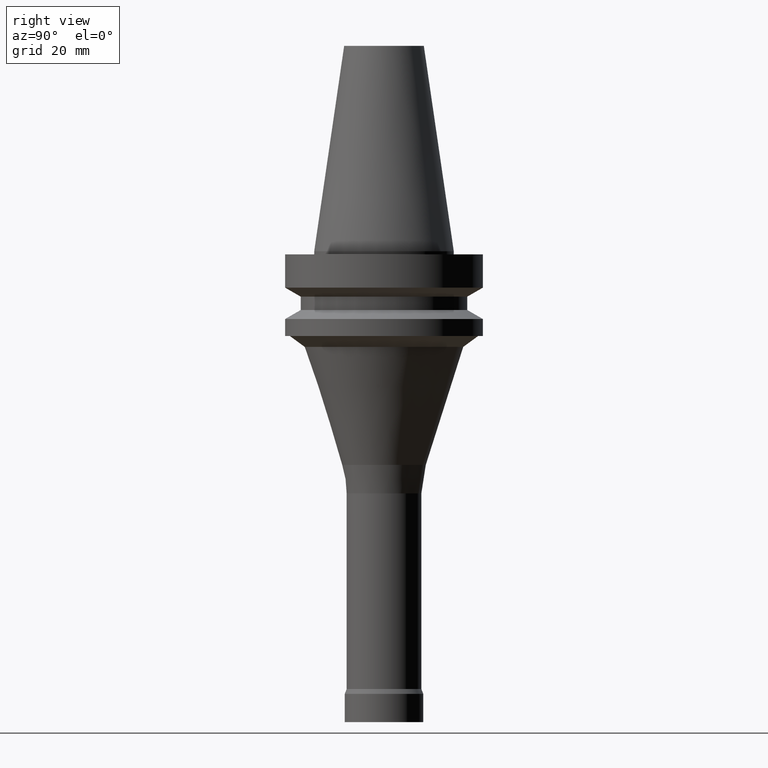
[diagram: clean part render]
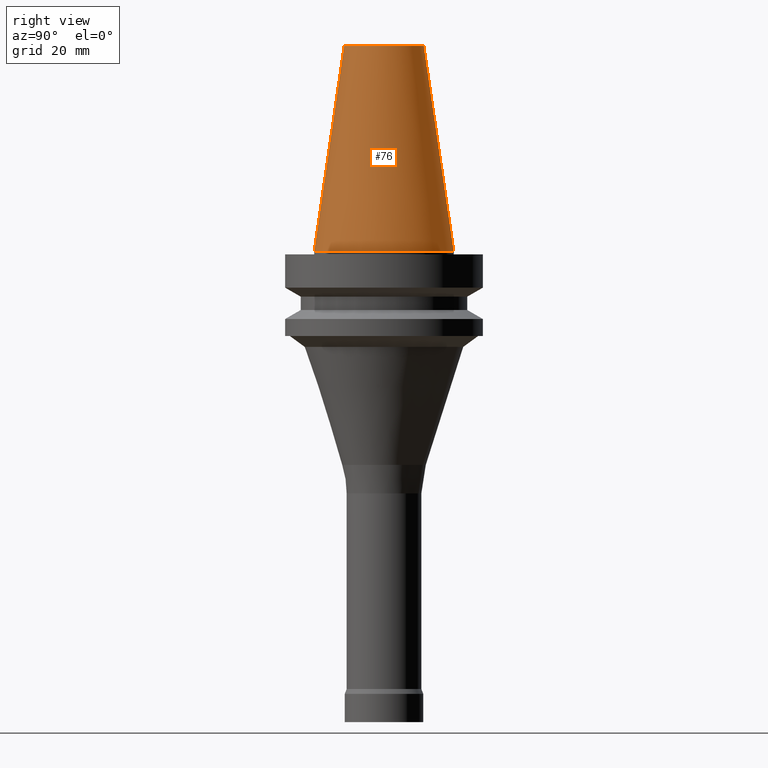
[diagram: same view with one face highlighted and labeled with its STEP entity id]
A machine part, right view. The second image highlights one B-rep face of the part: STEP entity #76.
In plain terms, the highlighted conical surface has half-angle 8.297 deg.
Its self-contained STEP definition (entity closure, byte-faithful):
#76=ADVANCED_FACE('',(#95,#96),#97,.T.);
#95=FACE_BOUND('',#144,.T.);
#96=FACE_BOUND('',#145,.T.);
#97=CONICAL_SURFACE('',#146,17.4562500026599,0.144812498159292);
#144=EDGE_LOOP('',(#195));
#145=EDGE_LOOP('',(#196));
#146=AXIS2_PLACEMENT_3D('',#197,#198,#199);
#195=ORIENTED_EDGE('',*,*,#275,.F.);
#196=ORIENTED_EDGE('',*,*,#274,.T.);
#197=CARTESIAN_POINT('',(-2.00229751660592E-015,-4.00459503321184E-015,32.7));
#198=DIRECTION('',(6.12323399573677E-017,1.22464679914735E-016,-1.0));
#199=DIRECTION('',(-1.23259516440783E-032,1.0,1.22464679914735E-016));
#274=EDGE_CURVE('',#290,#290,#291,.T.);
#275=EDGE_CURVE('',#292,#292,#293,.T.);
#290=VERTEX_POINT('',#322);
#291=CIRCLE('',#323,12.6875000053197);
#292=VERTEX_POINT('',#324);
#293=CIRCLE('',#325,22.225);
#322=CARTESIAN_POINT('',(-4.00459503321185E-015,12.6875000053197,65.4));
#323=AXIS2_PLACEMENT_3D('',#354,#355,#356);
#324=CARTESIAN_POINT('',(-4.94380699136164E-031,22.225,6.32177751110499E-015));
#325=AXIS2_PLACEMENT_3D('',#357,#358,#359);
#354=CARTESIAN_POINT('',(-4.00459503321185E-015,-8.00919006642369E-015,65.4));
#355=DIRECTION('',(6.12323399573677E-017,1.22464679914735E-016,-1.0));
#356=DIRECTION('',(-1.23259516440783E-032,1.0,1.22464679914735E-016));
#357=CARTESIAN_POINT('',(-2.20435498841458E-031,-4.40870997682916E-031,3.59998489352087E-015));
#358=DIRECTION('',(6.12323399573677E-017,1.22464679914735E-016,-1.0));
#359=DIRECTION('',(-1.23259516440783E-032,1.0,1.22464679914735E-016));